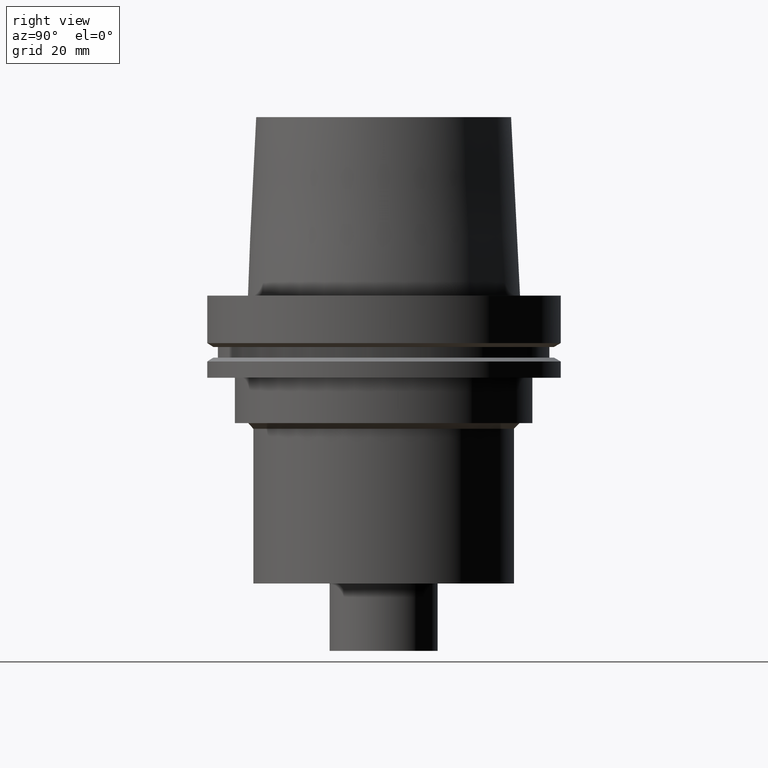
[diagram: clean part render]
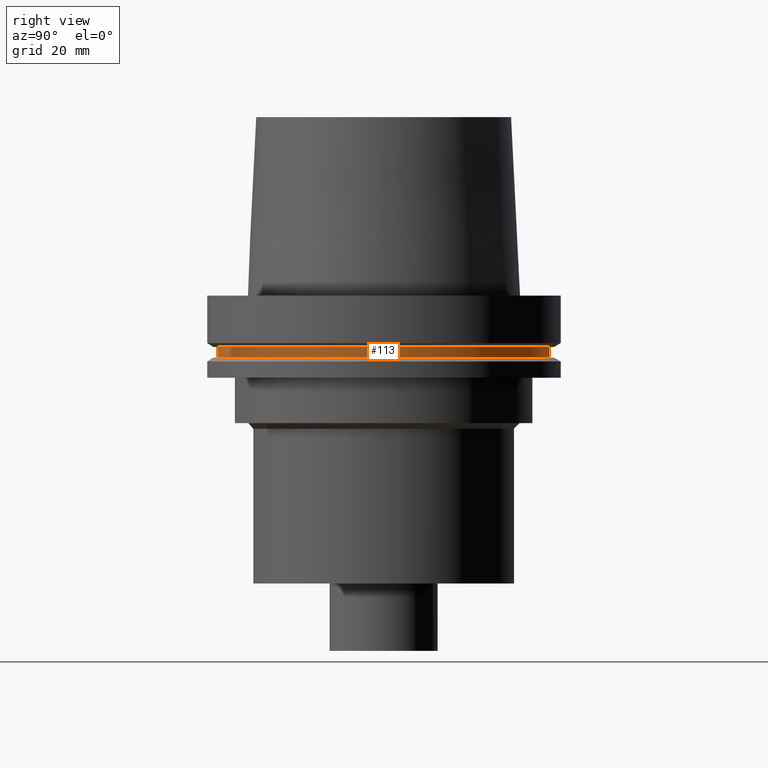
[diagram: same view with one face highlighted and labeled with its STEP entity id]
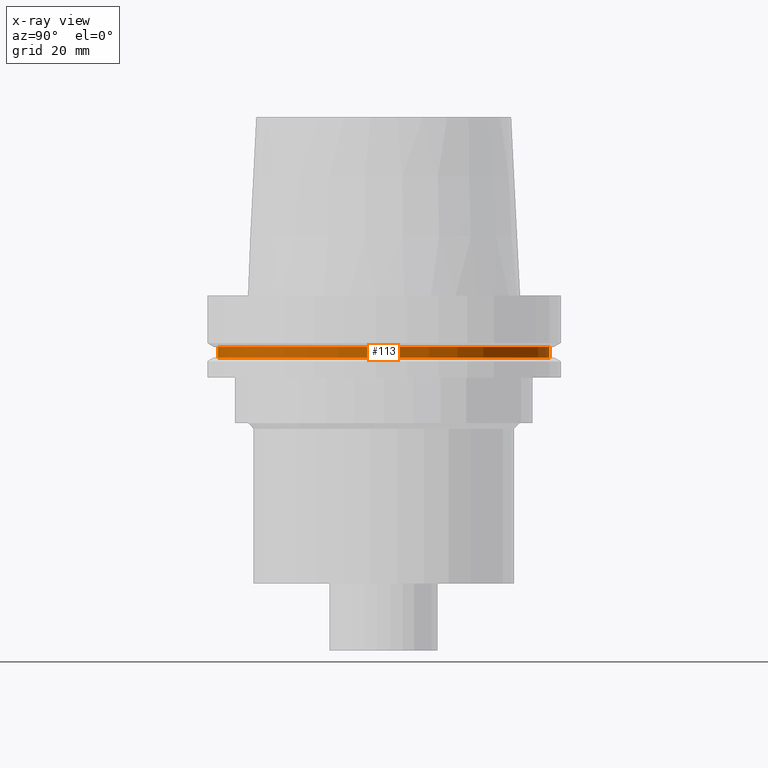
[diagram: x-ray of the same camera — body ghosted, the highlighted face saturated]
A machine part, right view. The second image highlights one B-rep face of the part: STEP entity #113.
The next image is the same camera in x-ray: the body ghosted, the highlighted face saturated — about 0% of this face is hidden behind the body in this view.
In plain terms, the highlighted cylindrical surface (bore or boss wall) has radius 58.5 mm, axis along (0, 0, -1).
Its self-contained STEP definition (entity closure, byte-faithful):
#66=EDGE_CURVE('Unnamed[1]',#177,#177,#178,.T.);
#113=ADVANCED_FACE('Unnamed[1]',(#250,#251),#252,.T.);
#144=EDGE_CURVE('Unnamed[1]',#298,#298,#299,.T.);
#177=VERTEX_POINT('',#328);
#178=CIRCLE('',#329,58.5);
#250=FACE_BOUND('',#417,.T.);
#251=FACE_BOUND('',#418,.T.);
#252=CYLINDRICAL_SURFACE('',#419,58.4999999999999);
#298=VERTEX_POINT('',#479);
#299=CIRCLE('',#480,58.4999999999998);
#328=CARTESIAN_POINT('',(1.10983616172739E-015,58.5,-18.1250000000017));
#329=AXIS2_PLACEMENT_3D('',#504,#505,#506);
#417=EDGE_LOOP('',(#586));
#418=EDGE_LOOP('',(#587));
#419=AXIS2_PLACEMENT_3D('',#588,#589,#590);
#479=CARTESIAN_POINT('',(1.33945743656732E-015,58.4999999999998,-21.8749999999984));
#480=AXIS2_PLACEMENT_3D('',#638,#639,#640);
#504=CARTESIAN_POINT('',(1.10983616172739E-015,2.21967232345478E-015,-18.1250000000017));
#505=DIRECTION('',(6.12323399573677E-017,1.22464679914762E-016,-1.0));
#506=DIRECTION('',(-1.23259516440783E-032,1.0,1.22464679914762E-016));
#586=ORIENTED_EDGE('',*,*,#144,.F.);
#587=ORIENTED_EDGE('',*,*,#66,.T.);
#588=CARTESIAN_POINT('',(1.22464679914736E-015,2.44929359829471E-015,-20.0));
#589=DIRECTION('',(6.12323399573677E-017,1.22464679914762E-016,-1.0));
#590=DIRECTION('',(-1.23259516440783E-032,1.0,1.22464679914762E-016));
#638=CARTESIAN_POINT('',(1.33945743656732E-015,2.67891487313464E-015,-21.8749999999984));
#639=DIRECTION('',(6.12323399573677E-017,1.22464679914763E-016,-1.0));
#640=DIRECTION('',(-1.23259516440784E-032,1.0,1.22464679914763E-016));